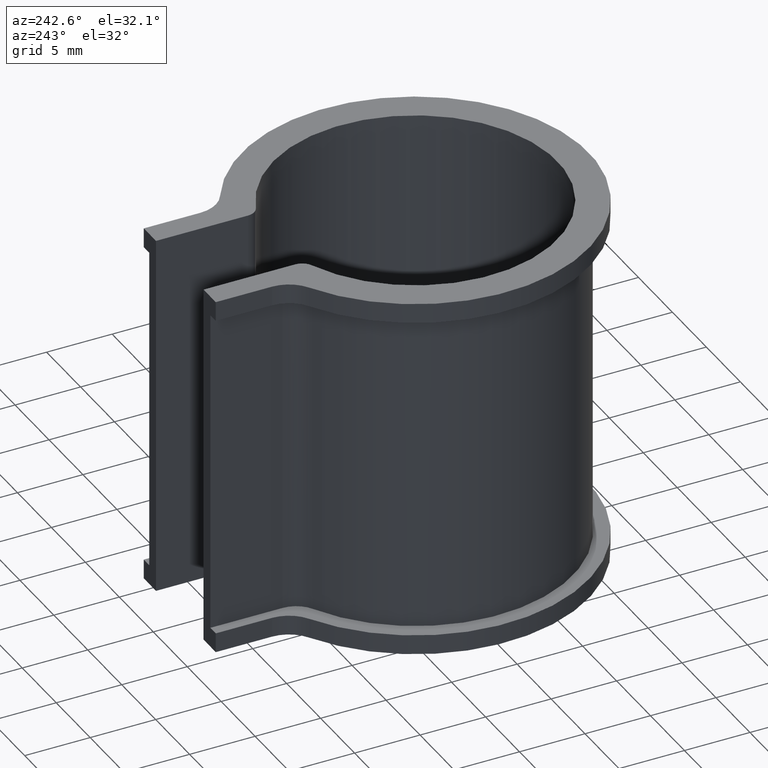
[diagram: clean part render]
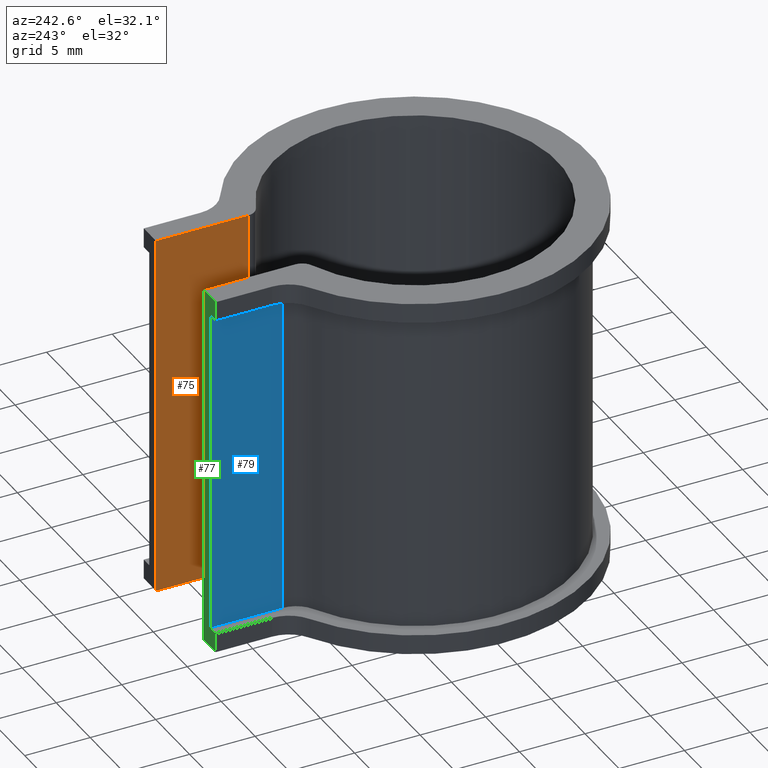
[diagram: same view with three faces highlighted in distinct colors, each labeled with its STEP entity id]
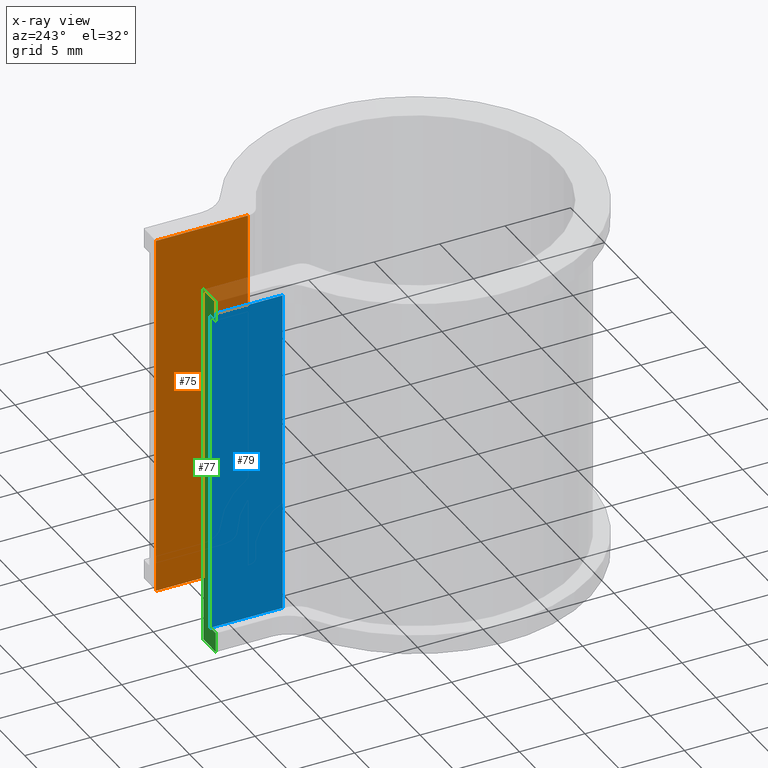
[diagram: x-ray of the same camera — body ghosted, the three highlighted faces saturated]
A machine part, auxiliary view with three faces highlighted in distinct colors.
The next image is the same camera in x-ray (body ghosted, the three faces saturated) — at least one of them is partly hidden behind the body in this view.
Their STEP definitions:

[orange] entity #75 — the highlighted planar face has unit normal (-1, 0, 0).
#75 = ADVANCED_FACE( '', ( #102 ), #103, .T. );
#102 = FACE_OUTER_BOUND( '', #154, .T. );
#103 = PLANE( '', #155 );
#154 = EDGE_LOOP( '', ( #206, #207, #208, #209 ) );
#155 = AXIS2_PLACEMENT_3D( '', #210, #211, #212 );
#206 = ORIENTED_EDGE( '', *, *, #428, .T. );
#207 = ORIENTED_EDGE( '', *, *, #429, .T. );
#208 = ORIENTED_EDGE( '', *, *, #430, .F. );
#209 = ORIENTED_EDGE( '', *, *, #431, .F. );
#210 = CARTESIAN_POINT( '', ( 3.50000000000001, 17.9782154210768, -25.0000000000000 ) );
#211 = DIRECTION( '', ( -1.00000000000000, 1.11022302462516E-016, 0.000000000000000 ) );
#212 = DIRECTION( '', ( 1.11022302462516E-016, 1.00000000000000, 0.000000000000000 ) );
#428 = EDGE_CURVE( '', #500, #501, #502, .T. );
#429 = EDGE_CURVE( '', #501, #503, #504, .T. );
#430 = EDGE_CURVE( '', #505, #503, #506, .T. );
#431 = EDGE_CURVE( '', #500, #505, #507, .T. );
#500 = VERTEX_POINT( '', #620 );
#501 = VERTEX_POINT( '', #621 );
#502 = LINE( '', #622, #623 );
#503 = VERTEX_POINT( '', #624 );
#504 = LINE( '', #625, #626 );
#505 = VERTEX_POINT( '', #627 );
#506 = LINE( '', #628, #629 );
#507 = LINE( '', #630, #631 );
#620 = CARTESIAN_POINT( '', ( 3.50000000000003, 17.9782154210768, -26.5000000000000 ) );
#621 = CARTESIAN_POINT( '', ( 3.50000000000000, 10.9623218343561, -26.5000000000000 ) );
#622 = CARTESIAN_POINT( '', ( 3.50000000000000, 17.9782154210768, -26.5000000000000 ) );
#623 = VECTOR( '', #788, 1000.00000000000 );
#624 = CARTESIAN_POINT( '', ( 3.50000000000000, 10.9623218343561, 1.50000000000000 ) );
#625 = CARTESIAN_POINT( '', ( 3.50000000000001, 10.9623218343561, -25.0000000000000 ) );
#626 = VECTOR( '', #789, 1000.00000000000 );
#627 = CARTESIAN_POINT( '', ( 3.50000000000003, 17.9782154210768, 1.50000000000000 ) );
#628 = CARTESIAN_POINT( '', ( 3.50000000000000, 17.9782154210768, 1.50000000000000 ) );
#629 = VECTOR( '', #790, 1000.00000000000 );
#630 = CARTESIAN_POINT( '', ( 3.50000000000004, 17.9782154210768, -25.0000000000000 ) );
#631 = VECTOR( '', #791, 1000.00000000000 );
#788 = DIRECTION( '', ( -6.12303176911189E-017, -1.00000000000000, 0.000000000000000 ) );
#789 = DIRECTION( '', ( 0.000000000000000, 0.000000000000000, 1.00000000000000 ) );
#790 = DIRECTION( '', ( -6.12303176911189E-017, -1.00000000000000, 0.000000000000000 ) );
#791 = DIRECTION( '', ( 0.000000000000000, 0.000000000000000, 1.00000000000000 ) );

[blue] entity #79 — the highlighted planar face has unit normal (-1, 0, 0).
#79 = ADVANCED_FACE( '', ( #110 ), #111, .T. );
#110 = FACE_OUTER_BOUND( '', #162, .T. );
#111 = PLANE( '', #163 );
#162 = EDGE_LOOP( '', ( #246, #247, #248, #249 ) );
#163 = AXIS2_PLACEMENT_3D( '', #250, #251, #252 );
#246 = ORIENTED_EDGE( '', *, *, #434, .T. );
#247 = ORIENTED_EDGE( '', *, *, #453, .T. );
#248 = ORIENTED_EDGE( '', *, *, #454, .F. );
#249 = ORIENTED_EDGE( '', *, *, #444, .F. );
#250 = CARTESIAN_POINT( '', ( -4.49999999999999, 17.9782154210768, -25.0000000000000 ) );
#251 = DIRECTION( '', ( -1.00000000000000, 1.11022302462516E-016, 0.000000000000000 ) );
#252 = DIRECTION( '', ( 1.11022302462516E-016, 1.00000000000000, 0.000000000000000 ) );
#434 = EDGE_CURVE( '', #513, #511, #514, .T. );
#444 = EDGE_CURVE( '', #513, #532, #533, .T. );
#453 = EDGE_CURVE( '', #511, #548, #549, .F. );
#454 = EDGE_CURVE( '', #532, #548, #550, .T. );
#511 = VERTEX_POINT( '', #635 );
#513 = VERTEX_POINT( '', #637 );
#514 = LINE( '', #638, #639 );
#532 = VERTEX_POINT( '', #662 );
#533 = LINE( '', #663, #664 );
#548 = VERTEX_POINT( '', #687 );
#549 = LINE( '', #688, #689 );
#550 = LINE( '', #690, #691 );
#635 = CARTESIAN_POINT( '', ( -4.49999999999999, 12.4560226396711, -25.0000000000000 ) );
#637 = CARTESIAN_POINT( '', ( -4.50000000000000, 17.9782154210768, -25.0000000000000 ) );
#638 = CARTESIAN_POINT( '', ( -4.49999999999999, 17.9782154210768, -25.0000000000000 ) );
#639 = VECTOR( '', #798, 1000.00000000000 );
#662 = CARTESIAN_POINT( '', ( -4.50000000000000, 17.9782154210768, 0.000000000000000 ) );
#663 = CARTESIAN_POINT( '', ( -4.50000000000000, 17.9782154210768, -25.0000000000000 ) );
#664 = VECTOR( '', #816, 1000.00000000000 );
#687 = CARTESIAN_POINT( '', ( -4.49999999999999, 12.4560226396711, 0.000000000000000 ) );
#688 = CARTESIAN_POINT( '', ( -4.49999999999999, 12.4560226396711, 0.000000000000000 ) );
#689 = VECTOR( '', #825, 1000.00000000000 );
#690 = CARTESIAN_POINT( '', ( -4.49999999999999, 17.9782154210768, 0.000000000000000 ) );
#691 = VECTOR( '', #826, 1000.00000000000 );
#798 = DIRECTION( '', ( -1.11022302462516E-016, -1.00000000000000, 0.000000000000000 ) );
#816 = DIRECTION( '', ( 0.000000000000000, 0.000000000000000, 1.00000000000000 ) );
#825 = DIRECTION( '', ( 0.000000000000000, 0.000000000000000, -1.00000000000000 ) );
#826 = DIRECTION( '', ( -1.11022302462516E-016, -1.00000000000000, 0.000000000000000 ) );

[green] entity #77 — the highlighted planar face has unit normal (0, 1, 0).
#77 = ADVANCED_FACE( '', ( #106 ), #107, .T. );
#106 = FACE_OUTER_BOUND( '', #158, .T. );
#107 = PLANE( '', #159 );
#158 = EDGE_LOOP( '', ( #228, #229, #230, #231, #232, #233, #234, #235 ) );
#159 = AXIS2_PLACEMENT_3D( '', #236, #237, #238 );
#228 = ORIENTED_EDGE( '', *, *, #444, .T. );
#229 = ORIENTED_EDGE( '', *, *, #445, .T. );
#230 = ORIENTED_EDGE( '', *, *, #446, .F. );
#231 = ORIENTED_EDGE( '', *, *, #447, .F. );
#232 = ORIENTED_EDGE( '', *, *, #448, .F. );
#233 = ORIENTED_EDGE( '', *, *, #449, .T. );
#234 = ORIENTED_EDGE( '', *, *, #450, .T. );
#235 = ORIENTED_EDGE( '', *, *, #435, .F. );
#236 = CARTESIAN_POINT( '', ( -3.50000000000000, 17.9782154210768, -25.0000000000000 ) );
#237 = DIRECTION( '', ( 5.55111512312578E-017, 1.00000000000000, 0.000000000000000 ) );
#238 = DIRECTION( '', ( 1.00000000000000, -5.55111512312578E-017, 0.000000000000000 ) );
#435 = EDGE_CURVE( '', #513, #515, #516, .T. );
#444 = EDGE_CURVE( '', #513, #532, #533, .T. );
#445 = EDGE_CURVE( '', #532, #534, #535, .T. );
#446 = EDGE_CURVE( '', #536, #534, #537, .T. );
#447 = EDGE_CURVE( '', #538, #536, #539, .T. );
#448 = EDGE_CURVE( '', #540, #538, #541, .T. );
#449 = EDGE_CURVE( '', #540, #542, #543, .T. );
#450 = EDGE_CURVE( '', #542, #515, #544, .T. );
#513 = VERTEX_POINT( '', #637 );
#515 = VERTEX_POINT( '', #640 );
#516 = LINE( '', #641, #642 );
#532 = VERTEX_POINT( '', #662 );
#533 = LINE( '', #663, #664 );
#534 = VERTEX_POINT( '', #665 );
#535 = LINE( '', #666, #667 );
#536 = VERTEX_POINT( '', #668 );
#537 = LINE( '', #669, #670 );
#538 = VERTEX_POINT( '', #671 );
#539 = LINE( '', #672, #673 );
#540 = VERTEX_POINT( '', #674 );
#541 = LINE( '', #675, #676 );
#542 = VERTEX_POINT( '', #677 );
#543 = LINE( '', #678, #679 );
#544 = LINE( '', #680, #681 );
#637 = CARTESIAN_POINT( '', ( -4.50000000000000, 17.9782154210768, -25.0000000000000 ) );
#640 = CARTESIAN_POINT( '', ( -5.30000000000001, 17.9782154210768, -25.0000000000000 ) );
#641 = CARTESIAN_POINT( '', ( -3.50000000000000, 17.9782154210768, -25.0000000000000 ) );
#642 = VECTOR( '', #799, 1000.00000000000 );
#662 = CARTESIAN_POINT( '', ( -4.50000000000000, 17.9782154210768, 0.000000000000000 ) );
#663 = CARTESIAN_POINT( '', ( -4.50000000000000, 17.9782154210768, -25.0000000000000 ) );
#664 = VECTOR( '', #816, 1000.00000000000 );
#665 = CARTESIAN_POINT( '', ( -5.30000000000001, 17.9782154210768, 0.000000000000000 ) );
#666 = CARTESIAN_POINT( '', ( -3.50000000000000, 17.9782154210768, 0.000000000000000 ) );
#667 = VECTOR( '', #817, 1000.00000000000 );
#668 = CARTESIAN_POINT( '', ( -5.30000000000001, 17.9782154210768, 1.50000000000000 ) );
#669 = CARTESIAN_POINT( '', ( -5.30000000000001, 17.9782154210768, 1.50000000000000 ) );
#670 = VECTOR( '', #818, 1000.00000000000 );
#671 = CARTESIAN_POINT( '', ( -3.50000000000000, 17.9782154210768, 1.50000000000000 ) );
#672 = CARTESIAN_POINT( '', ( -3.50000000000000, 17.9782154210768, 1.50000000000000 ) );
#673 = VECTOR( '', #819, 1000.00000000000 );
#674 = CARTESIAN_POINT( '', ( -3.50000000000000, 17.9782154210768, -26.5000000000000 ) );
#675 = CARTESIAN_POINT( '', ( -3.49999999999999, 17.9782154210768, -25.0000000000000 ) );
#676 = VECTOR( '', #820, 1000.00000000000 );
#677 = CARTESIAN_POINT( '', ( -5.30000000000001, 17.9782154210768, -26.5000000000000 ) );
#678 = CARTESIAN_POINT( '', ( -3.50000000000000, 17.9782154210768, -26.5000000000000 ) );
#679 = VECTOR( '', #821, 1000.00000000000 );
#680 = CARTESIAN_POINT( '', ( -5.30000000000001, 17.9782154210768, -26.5000000000000 ) );
#681 = VECTOR( '', #822, 1000.00000000000 );
#799 = DIRECTION( '', ( -1.00000000000000, 0.000000000000000, 0.000000000000000 ) );
#816 = DIRECTION( '', ( 0.000000000000000, 0.000000000000000, 1.00000000000000 ) );
#817 = DIRECTION( '', ( -1.00000000000000, 0.000000000000000, 0.000000000000000 ) );
#818 = DIRECTION( '', ( 0.000000000000000, 0.000000000000000, -1.00000000000000 ) );
#819 = DIRECTION( '', ( -1.00000000000000, 0.000000000000000, 0.000000000000000 ) );
#820 = DIRECTION( '', ( 0.000000000000000, 0.000000000000000, 1.00000000000000 ) );
#821 = DIRECTION( '', ( -1.00000000000000, 0.000000000000000, 0.000000000000000 ) );
#822 = DIRECTION( '', ( 0.000000000000000, 0.000000000000000, 1.00000000000000 ) );